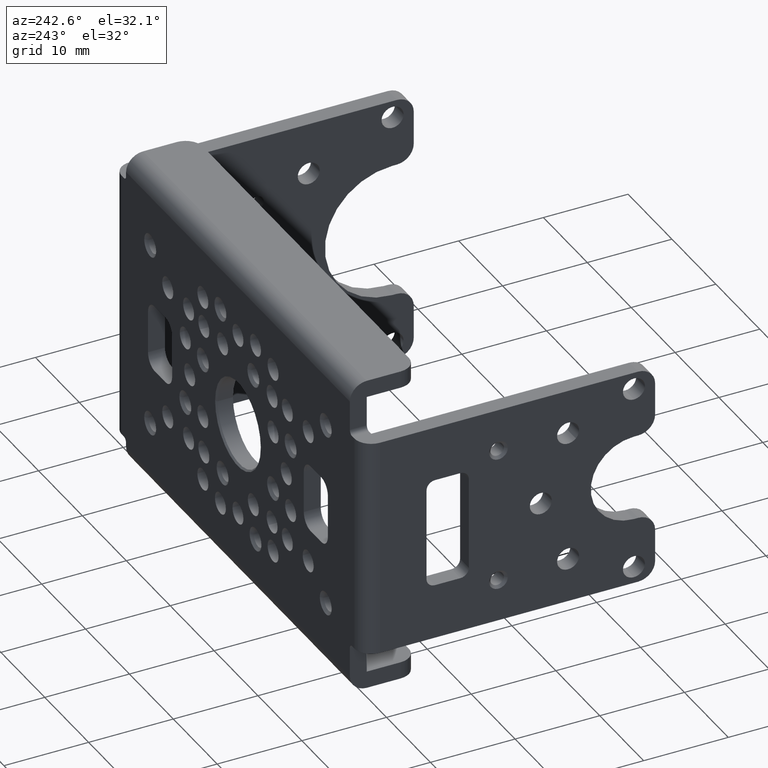
[diagram: clean part render]
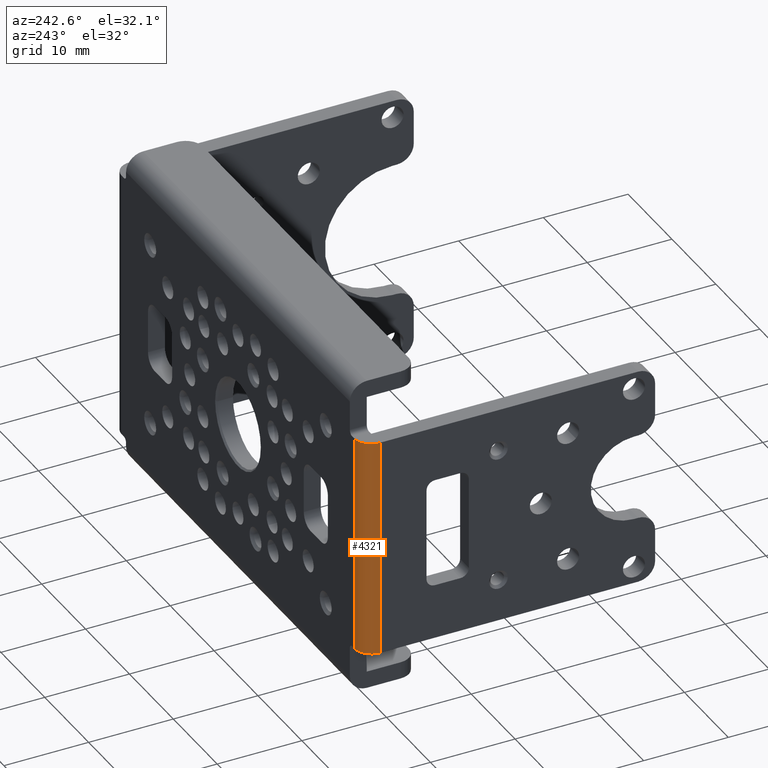
[diagram: same view with one face highlighted and labeled with its STEP entity id]
A machine part, auxiliary view. The second image highlights one B-rep face of the part: STEP entity #4321.
In plain terms, the highlighted cylindrical surface (edge-blend (fillet) strip) has radius 2 mm, axis along (0, 0, -1).
Its self-contained STEP definition (entity closure, byte-faithful):
#623=DIRECTION('',(0.E0,0.E0,-1.E0));
#624=VECTOR('',#623,2.6E1);
#625=CARTESIAN_POINT('',(-2.85E1,0.E0,1.3E1));
#626=LINE('',#625,#624);
#741=DIRECTION('',(0.E0,0.E0,-1.E0));
#742=VECTOR('',#741,2.6E1);
#743=CARTESIAN_POINT('',(-2.65E1,2.E0,1.3E1));
#744=LINE('',#743,#742);
#745=CARTESIAN_POINT('',(-2.65E1,0.E0,1.3E1));
#746=DIRECTION('',(0.E0,0.E0,1.E0));
#747=DIRECTION('',(0.E0,1.E0,0.E0));
#748=AXIS2_PLACEMENT_3D('',#745,#746,#747);
#750=CARTESIAN_POINT('',(-2.65E1,0.E0,-1.3E1));
#751=DIRECTION('',(0.E0,0.E0,1.E0));
#752=DIRECTION('',(0.E0,1.E0,0.E0));
#753=AXIS2_PLACEMENT_3D('',#750,#751,#752);
#2947=CARTESIAN_POINT('',(-2.85E1,0.E0,1.3E1));
#2948=CARTESIAN_POINT('',(-2.85E1,0.E0,-1.3E1));
#2949=VERTEX_POINT('',#2947);
#2950=VERTEX_POINT('',#2948);
#3151=CARTESIAN_POINT('',(-2.65E1,2.E0,1.3E1));
#3152=CARTESIAN_POINT('',(-2.65E1,2.E0,-1.3E1));
#3153=VERTEX_POINT('',#3151);
#3154=VERTEX_POINT('',#3152);
#4307=CARTESIAN_POINT('',(-2.65E1,0.E0,1.3E1));
#4308=DIRECTION('',(0.E0,0.E0,-1.E0));
#4309=DIRECTION('',(-1.E0,0.E0,0.E0));
#4310=AXIS2_PLACEMENT_3D('',#4307,#4308,#4309);
#4311=CYLINDRICAL_SURFACE('',#4310,2.E0);
#4313=ORIENTED_EDGE('',*,*,#4312,.F.);
#4315=ORIENTED_EDGE('',*,*,#4314,.T.);
#4316=ORIENTED_EDGE('',*,*,#4224,.T.);
#4318=ORIENTED_EDGE('',*,*,#4317,.F.);
#4319=EDGE_LOOP('',(#4313,#4315,#4316,#4318));
#4320=FACE_OUTER_BOUND('',#4319,.F.);
#4321=ADVANCED_FACE('',(#4320),#4311,.T.);
#749=CIRCLE('',#748,2.E0);
#754=CIRCLE('',#753,2.E0);
#4224=EDGE_CURVE('',#2949,#2950,#626,.T.);
#4312=EDGE_CURVE('',#3153,#3154,#744,.T.);
#4314=EDGE_CURVE('',#3153,#2949,#749,.T.);
#4317=EDGE_CURVE('',#3154,#2950,#754,.T.);